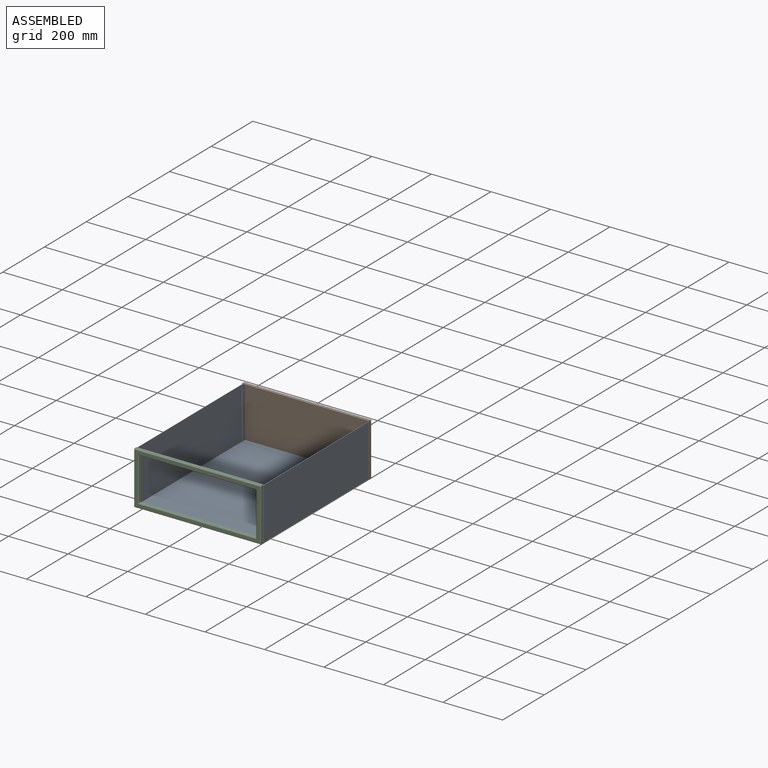
[diagram: assembled view]
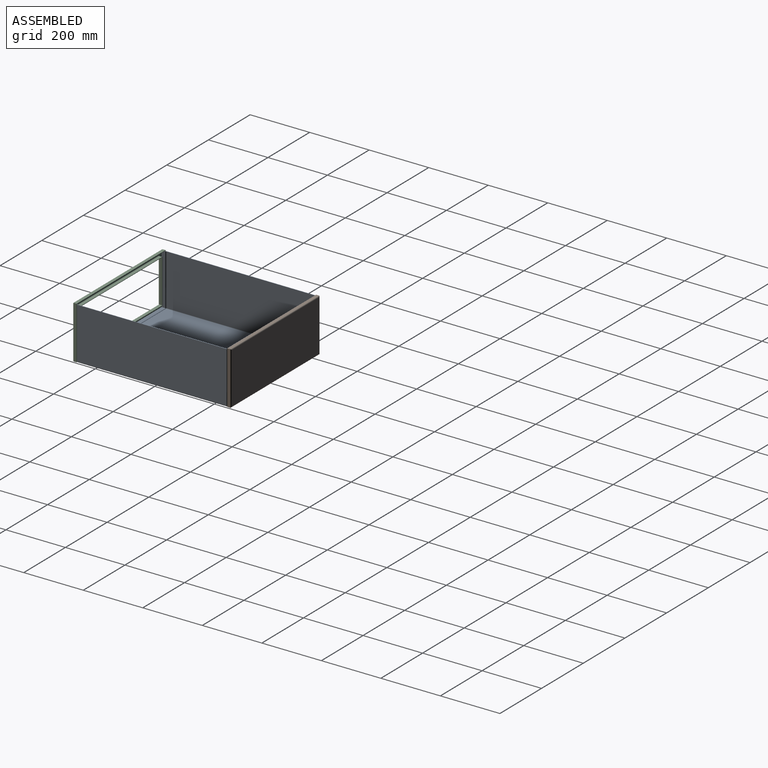
[diagram: assembled view, second angle]
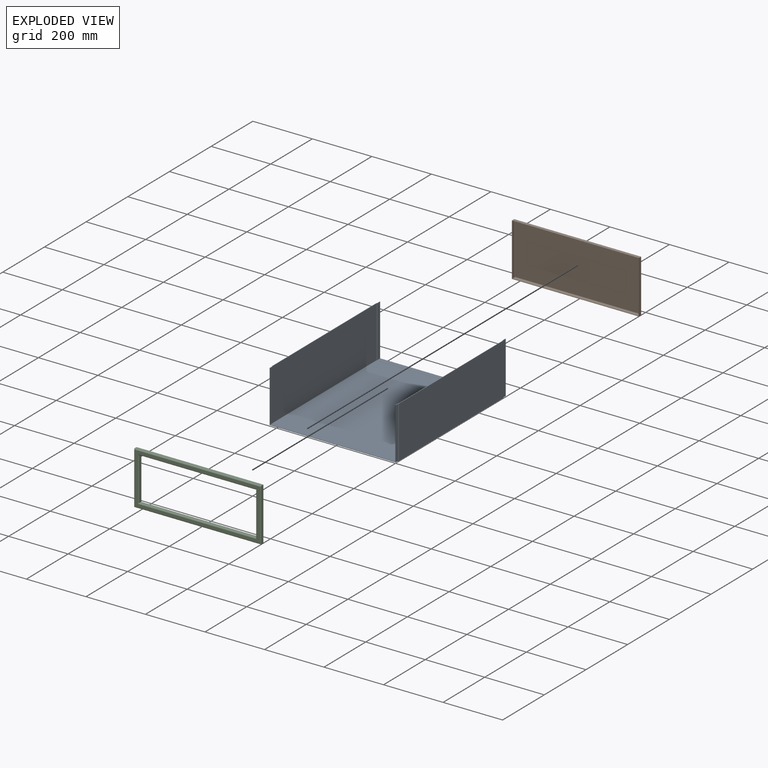
[diagram: exploded view]
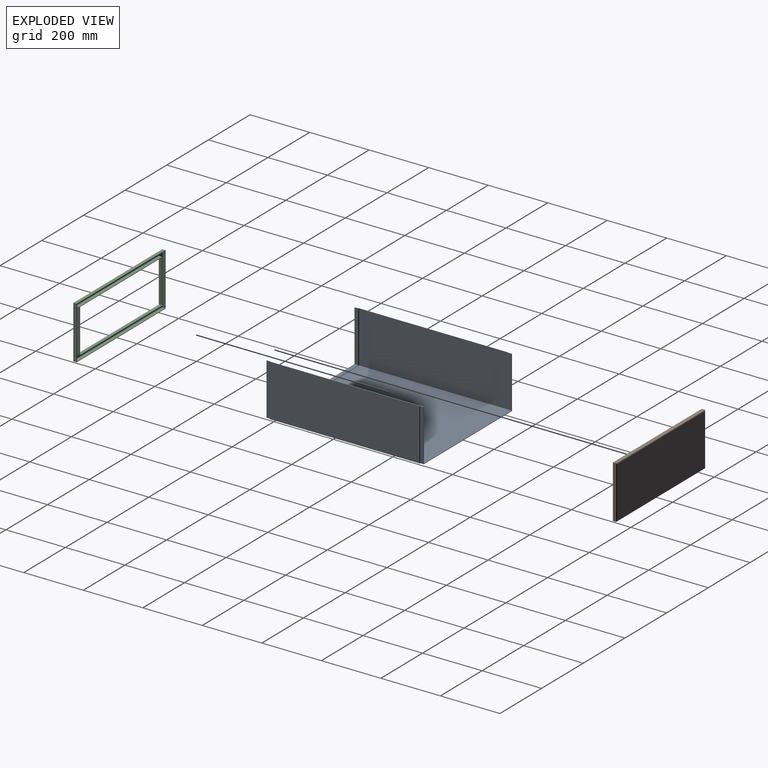
[diagram: exploded view, second angle]
ASSEMBLY  parts=3 mates=2
PART A: 44 faces, bbox 426.7x528.3x175.3 mm
  f0: plane 528.32x3.05mm, normal (0,0,1), area 807.6mm2, adj f4,f5,f6,f11,f12,f13,f14,f19
  f1: plane 528.32x3.05mm, normal (0,0,1), area 807.6mm2, adj f2,f5,f8,f9,f12,f17,f18,f22
  f2: plane 501.4x172.21mm, normal (-1,0,0), area 86346.4mm2, adj f1,f17,f22,f25
  f3: plane 501.4x420.62mm, normal (0,0,-1), area 210899.2mm2, adj f15,f20,f25,f26
  f4: plane 501.4x172.21mm, normal (1,0,0), area 86346.4mm2, adj f0,f13,f19,f26
  f5: plane 423.67x173.74mm, normal (0,1,0), area 1170.6mm2, adj f0,f1,f6,f7,f8,f30,f31,f32
  f6: plane 173.74x11.94mm, normal (1,0,0), area 2074.1mm2, adj f0,f5,f7,f21
  f7: plane 423.67x11.94mm, normal (0,0,-1), area 5057.8mm2, adj f5,f6,f8,f23
  f8: plane 173.74x11.94mm, normal (-1,0,0), area 2074.1mm2, adj f1,f5,f7,f24
  f9: plane 173.74x11.94mm, normal (-1,0,0), area 2074.1mm2, adj f1,f10,f12,f18
  f10: plane 423.67x11.94mm, normal (0,0,-1), area 5057.8mm2, adj f9,f11,f12,f16
  f11: plane 173.74x11.94mm, normal (1,0,0), area 2074.1mm2, adj f0,f10,f12,f14
  f12: plane 423.67x173.74mm, normal (0,-1,0), area 1170.6mm2, adj f0,f1,f9,f10,f11,f33,f34,f35
  f13: cylinder r=0.76mm len=174.23mm, axis (0,0,-1), area 207.4mm2, adj f0,f4,f14,f26
  f14: cylinder r=0.76mm len=174.37mm, axis (0,0,-1), area 208.3mm2, adj f0,f11,f13,f16,f26
  f15: cylinder r=0.76mm len=424.66mm, axis (-1,0,0), area 506.1mm2, adj f3,f16,f25,f26
  f16: cylinder r=0.76mm len=424.93mm, axis (-1,0,0), area 507.7mm2, adj f10,f14,f15,f18,f25,f26
  f17: cylinder r=0.76mm len=174.23mm, axis (0,0,1), area 207.4mm2, adj f1,f2,f18,f25
  f18: cylinder r=0.76mm len=174.37mm, axis (0,0,1), area 208.3mm2, adj f1,f9,f16,f17,f25
  f19: cylinder r=0.76mm len=174.23mm, axis (0,0,1), area 207.4mm2, adj f0,f4,f21,f26
  f20: cylinder r=0.76mm len=424.66mm, axis (1,0,0), area 506.1mm2, adj f3,f23,f25,f26
  f21: cylinder r=0.76mm len=174.37mm, axis (0,0,1), area 208.3mm2, adj f0,f6,f19,f23,f26
  f22: cylinder r=0.76mm len=174.23mm, axis (0,0,-1), area 207.4mm2, adj f1,f2,f24,f25
  f23: cylinder r=0.76mm len=424.93mm, axis (1,0,0), area 507.7mm2, adj f7,f20,f21,f24,f25,f26
  f24: cylinder r=0.76mm len=174.37mm, axis (0,0,-1), area 208.3mm2, adj f1,f8,f22,f23,f25
  f25: cylinder r=3.05mm len=502.94mm, axis (0,1,0), area 2405.3mm2, adj f2,f3,f15,f16,f17,f18,f20,f22
  f26: cylinder r=3.05mm len=502.94mm, axis (0,-1,0), area 2405.3mm2, adj f3,f4,f13,f14,f15,f16,f19,f20
  f27: plane 500.13x172.21mm, normal (1,0,0), area 86129mm2, adj f1,f38,f41,f42
  f28: plane 500.13x420.62mm, normal (0,0,1), area 210368.1mm2, adj f37,f40,f42,f43
  f29: plane 500.13x172.21mm, normal (-1,0,0), area 86129mm2, adj f0,f36,f39,f43
  f30: plane 172.21x11.94mm, normal (-1,0,0), area 2055.9mm2, adj f0,f5,f31,f39
  f31: plane 420.62x11.94mm, normal (0,0,1), area 5021.4mm2, adj f5,f30,f32,f40
  f32: plane 172.21x11.94mm, normal (1,0,0), area 2055.9mm2, adj f1,f5,f31,f41
  f33: plane 172.21x11.94mm, normal (1,0,0), area 2055.9mm2, adj f1,f12,f34,f38
  f34: plane 420.62x11.94mm, normal (0,0,1), area 5021.4mm2, adj f12,f33,f35,f37
  f35: plane 172.21x11.94mm, normal (-1,0,0), area 2055.9mm2, adj f0,f12,f34,f36
  f36: cylinder r=2.29mm len=173.29mm, axis (0,0,-1), area 485.8mm2, adj f0,f29,f35,f37,f43
  f37: cylinder r=2.29mm len=422.78mm, axis (-1,0,0), area 1186.1mm2, adj f28,f34,f36,f38,f42,f43
  f38: cylinder r=2.29mm len=173.29mm, axis (0,0,1), area 485.8mm2, adj f1,f27,f33,f37,f42
  f39: cylinder r=2.29mm len=173.29mm, axis (0,0,1), area 485.8mm2, adj f0,f29,f30,f40,f43
  f40: cylinder r=2.29mm len=422.78mm, axis (1,0,0), area 1186.1mm2, adj f28,f31,f39,f41,f42,f43
  f41: cylinder r=2.29mm len=173.29mm, axis (0,0,-1), area 485.8mm2, adj f1,f27,f32,f40,f42
  f42: cylinder r=1.52mm len=500.56mm, axis (0,1,0), area 1197.8mm2, adj f27,f28,f37,f38,f40,f41
  f43: cylinder r=1.52mm len=500.56mm, axis (0,-1,0), area 1197.8mm2, adj f28,f29,f36,f37,f39,f40
PART B: 19 faces, bbox 426.7x12.7x177.8 mm
  f0: plane 426.72x177.8mm, normal (0,-1,0), area 1833.3mm2, adj f1,f2,f3,f4,f10,f11,f12,f13
  f1: plane 177.8x9.65mm, normal (1,0,0), area 1716.1mm2, adj f0,f2,f4,f6
  f2: plane 426.72x9.65mm, normal (0,0,1), area 4118.7mm2, adj f0,f1,f3,f7
  f3: plane 177.8x9.65mm, normal (-1,0,0), area 1716.1mm2, adj f0,f2,f4,f9
  f4: plane 426.72x9.65mm, normal (0,0,-1), area 4118.7mm2, adj f0,f1,f3,f8
  f5: plane 420.62x171.7mm, normal (0,1,0), area 72222.8mm2, adj f6,f7,f8,f9
  f6: cylinder r=3.05mm len=177.8mm, axis (0,0,1), area 840.7mm2, adj f1,f5,f7,f8
  f7: cylinder r=3.05mm len=426.72mm, axis (-1,0,0), area 2032.4mm2, adj f2,f5,f6,f9
  f8: cylinder r=3.05mm len=426.72mm, axis (1,0,0), area 2032.4mm2, adj f4,f5,f6,f9
  f9: cylinder r=3.05mm len=177.8mm, axis (0,0,-1), area 840.7mm2, adj f3,f5,f7,f8
  f10: plane 174.75x9.65mm, normal (-1,0,0), area 1686.7mm2, adj f0,f11,f13,f15
  f11: plane 423.67x9.65mm, normal (0,0,-1), area 4089.3mm2, adj f0,f10,f12,f16
  f12: plane 174.75x9.65mm, normal (1,0,0), area 1686.7mm2, adj f0,f11,f13,f18
  f13: plane 423.67x9.65mm, normal (0,0,1), area 4089.3mm2, adj f0,f10,f12,f17
  f14: plane 420.62x171.7mm, normal (0,-1,0), area 72222.8mm2, adj f15,f16,f17,f18
  f15: cylinder r=1.52mm len=174.75mm, axis (0,0,1), area 415.7mm2, adj f10,f14,f16,f17
  f16: cylinder r=1.52mm len=423.67mm, axis (-1,0,0), area 1011.6mm2, adj f11,f14,f15,f18
  f17: cylinder r=1.52mm len=423.67mm, axis (1,0,0), area 1011.6mm2, adj f13,f14,f15,f18
  f18: cylinder r=1.52mm len=174.75mm, axis (0,0,-1), area 415.7mm2, adj f12,f14,f16,f17
PART C: 52 faces, bbox 426.7x12.7x177.8 mm
  f0: plane 426.72x177.8mm, normal (0,1,0), area 1833.3mm2, adj f4,f5,f6,f7,f30,f31,f32,f33
  f1: plane 392.18x9.65mm, normal (0,0,-1), area 3785.3mm2, adj f9,f11,f14,f18
  f2: plane 144.53x9.65mm, normal (-1,0,0), area 1395mm2, adj f9,f11,f12,f22
  f3: plane 392.18x9.65mm, normal (0,0,1), area 3785.3mm2, adj f9,f12,f13,f19
  f4: plane 177.8x9.65mm, normal (1,0,0), area 1716.1mm2, adj f0,f5,f7,f24
  f5: plane 426.72x9.65mm, normal (0,0,1), area 4118.7mm2, adj f0,f4,f6,f23
  f6: plane 177.8x9.65mm, normal (-1,0,0), area 1716.1mm2, adj f0,f5,f7,f25
  f7: plane 426.72x9.65mm, normal (0,0,-1), area 4118.7mm2, adj f0,f4,f6,f26
  f8: plane 144.53x9.65mm, normal (1,0,0), area 1395mm2, adj f9,f13,f14,f15
  f9: plane 396.75x149.1mm, normal (0,1,0), area 1650.5mm2, adj f1,f2,f3,f8,f11,f12,f13,f14
  f10: plane 420.62x171.7mm, normal (0,-1,0), area 11407.9mm2, adj f15,f16,f17,f18,f19,f20,f21,f22
  f11: cylinder r=0.76mm len=9.65mm, axis (0,-1,0), area 11.6mm2, adj f1,f2,f9,f20
  f12: cylinder r=0.76mm len=9.65mm, axis (0,1,0), area 11.6mm2, adj f2,f3,f9,f21
  f13: cylinder r=0.76mm len=9.65mm, axis (0,-1,0), area 11.6mm2, adj f3,f8,f9,f17
  f14: cylinder r=0.76mm len=9.65mm, axis (0,1,0), area 11.6mm2, adj f1,f8,f9,f16
  f15: cylinder r=3.05mm len=144.53mm, axis (0,0,1), area 692mm2, adj f8,f10,f16,f17
  f16: torus R=3.81mm, axis (0,-1,0), area 14.1mm2, adj f10,f14,f15,f18
  f17: torus R=3.81mm, axis (0,-1,0), area 14.1mm2, adj f10,f13,f15,f19
  f18: cylinder r=3.05mm len=392.18mm, axis (1,0,0), area 1877.7mm2, adj f1,f10,f16,f20
  f19: cylinder r=3.05mm len=392.18mm, axis (-1,0,0), area 1877.7mm2, adj f3,f10,f17,f21
  f20: torus R=3.81mm, axis (0,-1,0), area 14.1mm2, adj f10,f11,f18,f22
  f21: torus R=3.81mm, axis (0,-1,0), area 14.1mm2, adj f10,f12,f19,f22
  f22: cylinder r=3.05mm len=144.53mm, axis (0,0,-1), area 692mm2, adj f2,f10,f20,f21
  f23: cylinder r=3.05mm len=426.72mm, axis (-1,0,0), area 2032.4mm2, adj f5,f10,f24,f25
  f24: cylinder r=3.05mm len=177.8mm, axis (0,0,1), area 840.7mm2, adj f4,f10,f23,f26
  f25: cylinder r=3.05mm len=177.8mm, axis (0,0,-1), area 840.7mm2, adj f6,f10,f23,f26
  f26: cylinder r=3.05mm len=426.72mm, axis (1,0,0), area 2032.4mm2, adj f7,f10,f24,f25
  f27: plane 392.18x9.65mm, normal (0,0,1), area 3785.3mm2, adj f9,f36,f39,f43
  f28: plane 144.53x9.65mm, normal (1,0,0), area 1395mm2, adj f9,f36,f37,f47
  f29: plane 392.18x9.65mm, normal (0,0,-1), area 3785.3mm2, adj f9,f37,f38,f44
  f30: plane 174.75x9.65mm, normal (-1,0,0), area 1686.7mm2, adj f0,f31,f33,f49
  f31: plane 423.67x9.65mm, normal (0,0,-1), area 4089.3mm2, adj f0,f30,f32,f48
  f32: plane 174.75x9.65mm, normal (1,0,0), area 1686.7mm2, adj f0,f31,f33,f50
  f33: plane 423.67x9.65mm, normal (0,0,1), area 4089.3mm2, adj f0,f30,f32,f51
  f34: plane 144.53x9.65mm, normal (-1,0,0), area 1395mm2, adj f9,f38,f39,f40
  f35: plane 420.62x171.7mm, normal (0,1,0), area 11407.9mm2, adj f40,f41,f42,f43,f44,f45,f46,f47
  f36: cylinder r=2.29mm len=9.65mm, axis (0,-1,0), area 34.7mm2, adj f9,f27,f28,f45
  f37: cylinder r=2.29mm len=9.65mm, axis (0,1,0), area 34.7mm2, adj f9,f28,f29,f46
  f38: cylinder r=2.29mm len=9.65mm, axis (0,-1,0), area 34.7mm2, adj f9,f29,f34,f42
  f39: cylinder r=2.29mm len=9.65mm, axis (0,1,0), area 34.7mm2, adj f9,f27,f34,f41
  f40: cylinder r=1.52mm len=144.53mm, axis (0,0,1), area 346mm2, adj f34,f35,f41,f42
  f41: torus R=3.81mm, axis (0,-1,0), area 10.7mm2, adj f35,f39,f40,f43
  f42: torus R=3.81mm, axis (0,-1,0), area 10.7mm2, adj f35,f38,f40,f44
  f43: cylinder r=1.52mm len=392.18mm, axis (1,0,0), area 938.8mm2, adj f27,f35,f41,f45
  f44: cylinder r=1.52mm len=392.18mm, axis (-1,0,0), area 938.8mm2, adj f29,f35,f42,f46
  f45: torus R=3.81mm, axis (0,-1,0), area 10.7mm2, adj f35,f36,f43,f47
  f46: torus R=3.81mm, axis (0,-1,0), area 10.7mm2, adj f35,f37,f44,f47
  f47: cylinder r=1.52mm len=144.53mm, axis (0,0,-1), area 346mm2, adj f28,f35,f45,f46
  f48: cylinder r=1.52mm len=423.67mm, axis (-1,0,0), area 1011.6mm2, adj f31,f35,f49,f50
  f49: cylinder r=1.52mm len=174.75mm, axis (0,0,1), area 415.7mm2, adj f30,f35,f48,f51
  f50: cylinder r=1.52mm len=174.75mm, axis (0,0,-1), area 415.7mm2, adj f32,f35,f48,f51
  f51: cylinder r=1.52mm len=423.67mm, axis (1,0,0), area 1011.6mm2, adj f33,f35,f49,f50
PLACE A at identity fixed
PLACE B t=(0,265.68,1.27)mm
PLACE C t=(0,-265.68,1.27)mm
MATE fastened A.f12 <-> C.f35  axis (0,-1,0) through (211.84,-264.16,-86.11)mm
MATE fastened A.f5 <-> B.f14  axis (0,1,0) through (211.84,264.16,-86.11)mm
